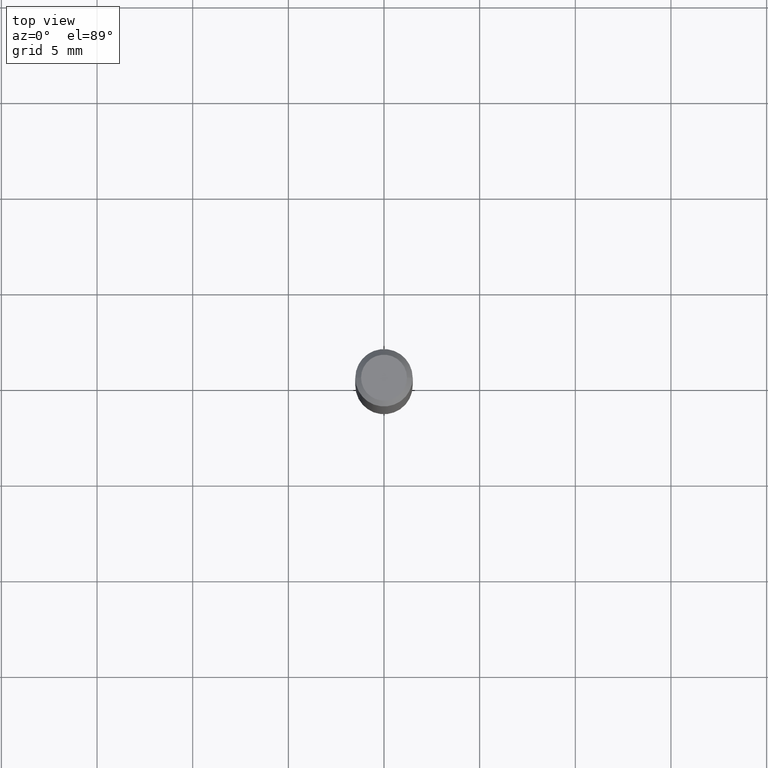
[diagram: clean part render]
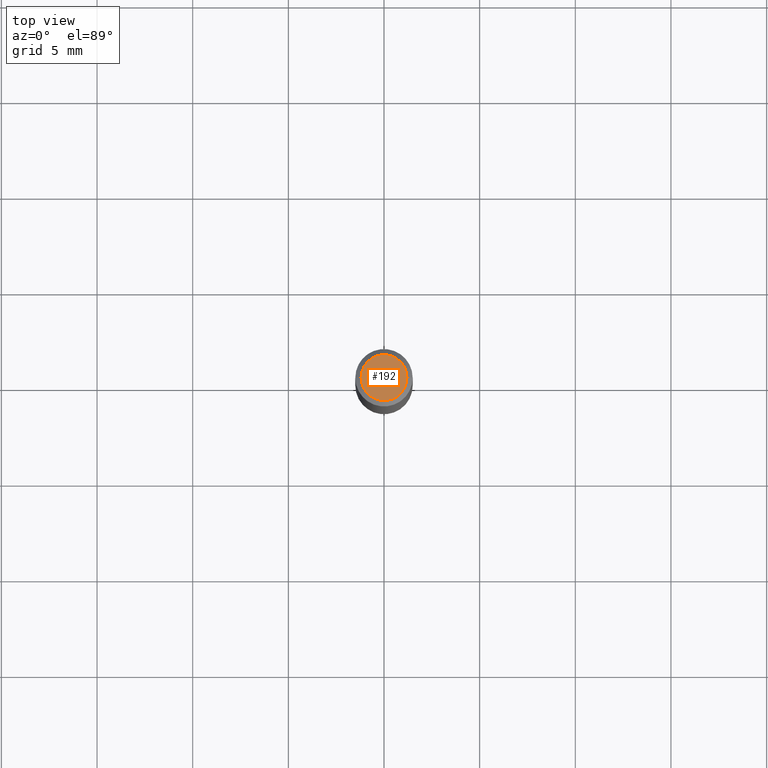
[diagram: same view with one face highlighted and labeled with its STEP entity id]
A machine part, top view. The second image highlights one B-rep face of the part: STEP entity #192.
In plain terms, the highlighted planar face has unit normal (0, -0, -1).
Its self-contained STEP definition (entity closure, byte-faithful):
#4 = DIRECTION ( 'NONE',  ( -1.000000000000000000, 6.982962677686265922E-15, -4.876176775795935793E-29 ) ) ;
#37 = CARTESIAN_POINT ( 'NONE',  ( 8.265746106709734507E-48, -1.180129479067563789E-33, -3.380025165646692144E-19 ) ) ;
#109 = VERTEX_POINT ( 'NONE', #458 ) ;
#148 = CARTESIAN_POINT ( 'NONE',  ( 4.132873053354867254E-48, -5.900647395337818946E-34, -1.690012582823346072E-19 ) ) ;
#166 = AXIS2_PLACEMENT_3D ( 'NONE', #314, #263, #223 ) ;
#171 = EDGE_CURVE ( 'NONE', #109, #219, #434, .T. ) ;
#184 = DIRECTION ( 'NONE',  ( 1.000000000000000000, -6.982962677686266711E-15, 4.876185090822587894E-29 ) ) ;
#192 = ADVANCED_FACE ( 'NONE', ( #227 ), #377, .F. ) ;
#197 = EDGE_CURVE ( 'NONE', #219, #109, #371, .T. ) ;
#211 = CARTESIAN_POINT ( 'NONE',  ( -0.04724000000000000421, 3.504923541997677355E-16, -3.380025165670481712E-19 ) ) ;
#219 = VERTEX_POINT ( 'NONE', #211 ) ;
#223 = DIRECTION ( 'NONE',  ( 1.000000000000000000, -6.982962677686266711E-15, 4.876185090822587894E-29 ) ) ;
#225 = EDGE_LOOP ( 'NONE', ( #325, #346 ) ) ;
#227 = FACE_OUTER_BOUND ( 'NONE', #225, .T. ) ;
#263 = DIRECTION ( 'NONE',  ( -2.445468806185136597E-29, 3.491481338843145583E-15, 1.000000000000000000 ) ) ;
#314 = CARTESIAN_POINT ( 'NONE',  ( 8.265746106709734507E-48, -1.180129479067563789E-33, -3.380025165646692144E-19 ) ) ;
#325 = ORIENTED_EDGE ( 'NONE', *, *, #197, .T. ) ;
#343 = DIRECTION ( 'NONE',  ( -2.445468806185136597E-29, 3.491481338843145583E-15, 1.000000000000000000 ) ) ;
#346 = ORIENTED_EDGE ( 'NONE', *, *, #171, .T. ) ;
#352 = AXIS2_PLACEMENT_3D ( 'NONE', #37, #343, #184 ) ;
#361 = AXIS2_PLACEMENT_3D ( 'NONE', #148, #467, #4 ) ;
#371 = CIRCLE ( 'NONE', #352, 0.04724000000000000421 ) ;
#377 = PLANE ( 'NONE',  #361 ) ;
#434 = CIRCLE ( 'NONE', #166, 0.04724000000000000421 ) ;
#458 = CARTESIAN_POINT ( 'NONE',  ( 0.04724000000000000421, -3.852183633974369345E-16, -3.380025165621689721E-19 ) ) ;
#467 = DIRECTION ( 'NONE',  ( 2.438088387897960049E-29, -3.491481338843145188E-15, -1.000000000000000000 ) ) ;